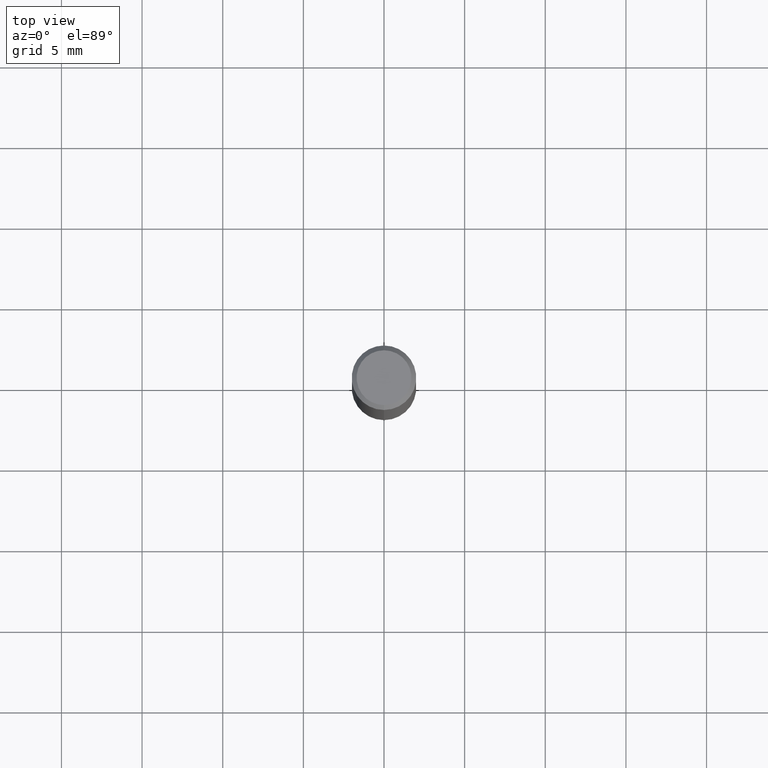
[diagram: clean part render]
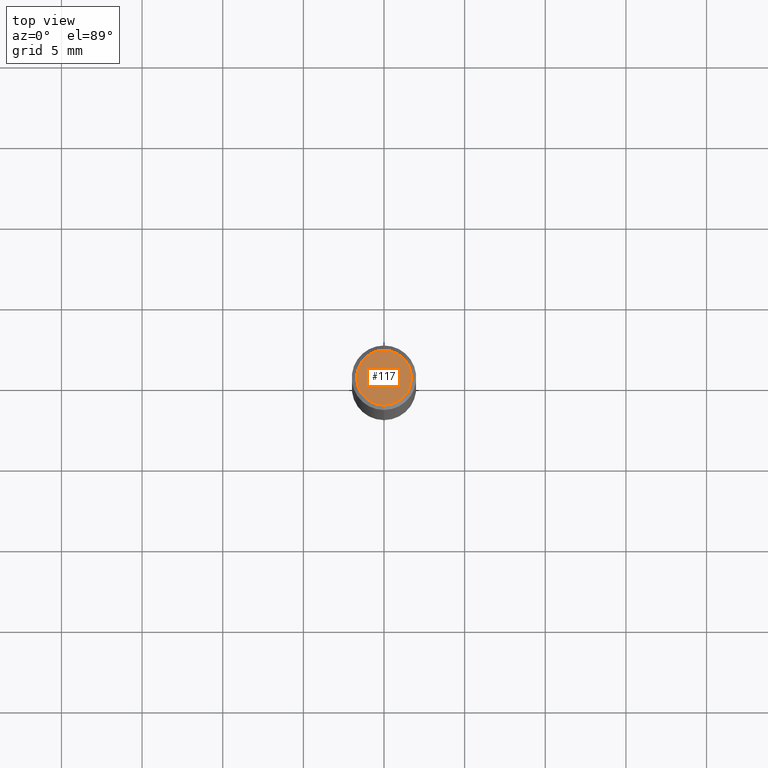
[diagram: same view with one face highlighted and labeled with its STEP entity id]
A machine part, top view. The second image highlights one B-rep face of the part: STEP entity #117.
In plain terms, the highlighted planar face has unit normal (-0, 0, 1).
Its self-contained STEP definition (entity closure, byte-faithful):
#117=ADVANCED_FACE('',(#289),#290,.T.);
#127=VERTEX_POINT('',#300);
#147=VERTEX_POINT('',#321);
#233=EDGE_CURVE('',#147,#127,#424,.T.);
#235=EDGE_CURVE('',#127,#147,#426,.T.);
#289=FACE_OUTER_BOUND('',#475,.T.);
#290=PLANE('',#476);
#300=CARTESIAN_POINT('',(2.08183080149804E-016,-1.7,0.0));
#321=CARTESIAN_POINT('',(0.0,1.7,0.0));
#424=CIRCLE('',#643,1.7);
#426=CIRCLE('',#646,1.7);
#475=EDGE_LOOP('',(#695,#696));
#476=AXIS2_PLACEMENT_3D('',#697,#698,#699);
#643=AXIS2_PLACEMENT_3D('',#862,#863,#864);
#646=AXIS2_PLACEMENT_3D('',#865,#866,#867);
#695=ORIENTED_EDGE('',*,*,#233,.F.);
#696=ORIENTED_EDGE('',*,*,#235,.F.);
#697=CARTESIAN_POINT('',(0.0,0.85,0.0));
#698=DIRECTION('',(-0.0,0.0,1.0));
#699=DIRECTION('',(0.0,-1.0,0.0));
#862=CARTESIAN_POINT('',(0.0,0.0,0.0));
#863=DIRECTION('',(0.0,0.0,-1.0));
#864=DIRECTION('',(0.0,1.0,0.0));
#865=CARTESIAN_POINT('',(0.0,0.0,0.0));
#866=DIRECTION('',(0.0,0.0,-1.0));
#867=DIRECTION('',(0.0,1.0,0.0));